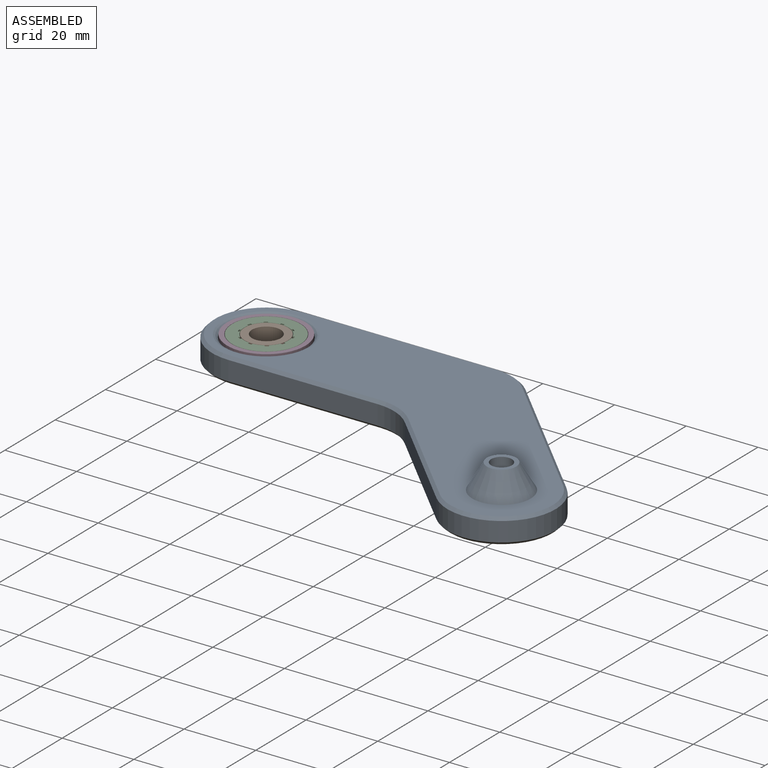
[diagram: assembled view]
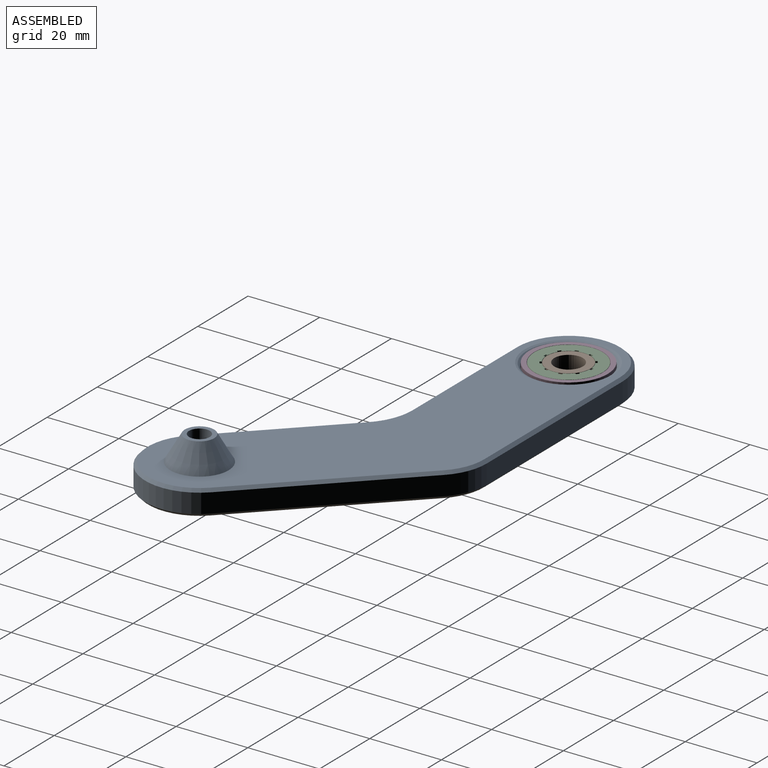
[diagram: assembled view, second angle]
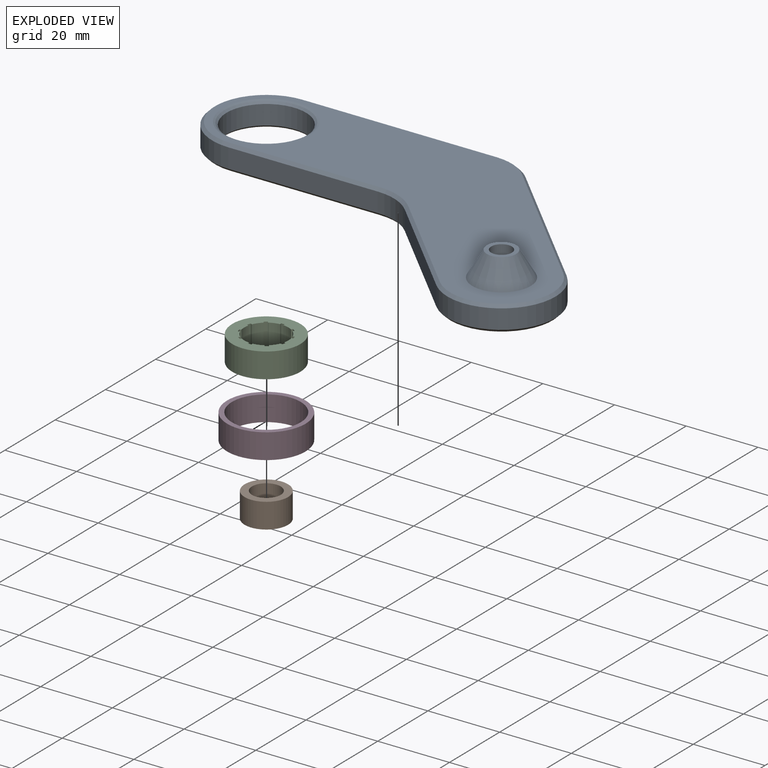
[diagram: exploded view]
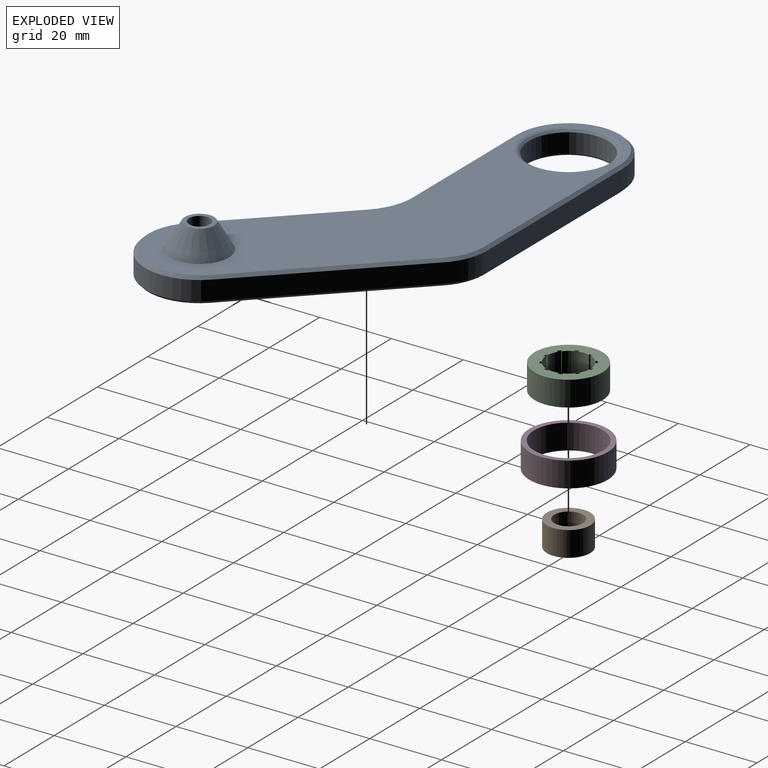
[diagram: exploded view, second angle]
ASSEMBLY  parts=4 mates=3
PART A: 36 faces, bbox 122.6x68.5x14 mm
  f0: cylinder r=2.9mm len=12.6mm, axis (0,0,1), area 223.7mm2, adj f32,f33,f34
  f1: cylinder r=15.1mm len=25.78mm, axis (0,0,-1), area 256.2mm2, adj f2,f7,f16,f25
  f2: plane 38.3x38.3mm, normal (0.71,0.71,0), area 292.5mm2, adj f1,f12,f18,f27
  f3: plane 54.16x5.4mm, normal (0,1,0), area 292.5mm2, adj f4,f12,f21,f30
  f4: cylinder r=15.1mm len=30.2mm, axis (0,0,-1), area 256.2mm2, adj f3,f5,f19,f28
  f5: plane 41.65x5.4mm, normal (0,-1,0), area 224.9mm2, adj f4,f13,f17,f26
  f6: cylinder r=11.1mm len=22.2mm, axis (0,0,-1), area 376.6mm2, adj f10,f11
  f7: plane 29.45x29.45mm, normal (-0.71,-0.71,0), area 224.9mm2, adj f1,f13,f14,f23
  f8: plane 120.99x66.87mm, normal (0,0,1), area 3060.9mm2, adj f23,f24,f25,f26,f27,f28,f29,f30
  f9: plane 120.99x66.87mm, normal (0,0,-1), area 3211mm2, adj f14,f15,f16,f17,f18,f19,f20,f21
  f10: cone r=11.9mm half-angle=45deg, axis (0,0,-1), area 57.2mm2, adj f6,f22
  f11: cone r=11.1mm half-angle=45deg, axis (0,0,1), area 57.2mm2, adj f6,f31
  f12: cylinder r=15mm len=10.61mm, axis (0,0,-1), area 63.6mm2, adj f2,f3,f20,f29
  f13: cylinder r=15mm len=10.61mm, axis (0,0,1), area 63.6mm2, adj f5,f7,f15,f24
  f14: plane 30.02x30.02mm, normal (-0.5,-0.5,-0.71), area 47.1mm2, adj f7,f9,f15,f16
  f15: cone r=15.8mm half-angle=45deg, axis (0,0,-1), area 13.7mm2, adj f9,f13,f14,f17
  f16: cone r=14.3mm half-angle=45deg, axis (0,0,1), area 52.2mm2, adj f1,f9,f14,f18
  f17: plane 41.65x0.8mm, normal (0,-0.71,-0.71), area 47.1mm2, adj f5,f9,f15,f19
  f18: plane 38.86x38.86mm, normal (0.5,0.5,-0.71), area 61.3mm2, adj f2,f9,f16,f20
  f19: cone r=14.3mm half-angle=45deg, axis (0,0,1), area 52.2mm2, adj f4,f9,f17,f21
  f20: cone r=14.2mm half-angle=45deg, axis (0,0,1), area 13mm2, adj f9,f12,f18,f21
  f21: plane 54.16x0.8mm, normal (0,0.71,-0.71), area 61.3mm2, adj f3,f9,f19,f20
  f22: cone r=12.23mm half-angle=67.5deg, axis (0,0,-1), area 46mm2, adj f9,f10
  f23: plane 30.02x30.02mm, normal (-0.5,-0.5,0.71), area 47.1mm2, adj f7,f8,f24,f25
  f24: cone r=15.8mm half-angle=45deg, axis (0,0,1), area 13.7mm2, adj f8,f13,f23,f26
  f25: cone r=15.1mm half-angle=45deg, axis (0,0,-1), area 52.2mm2, adj f1,f8,f23,f27
  f26: plane 41.65x0.8mm, normal (0,-0.71,0.71), area 47.1mm2, adj f5,f8,f24,f28
  f27: plane 38.86x38.86mm, normal (0.5,0.5,0.71), area 61.3mm2, adj f2,f8,f25,f29
  f28: cone r=15.1mm half-angle=45deg, axis (0,0,-1), area 52.2mm2, adj f4,f8,f26,f30
  f29: cone r=14.2mm half-angle=45deg, axis (0,0,-1), area 13mm2, adj f8,f12,f27,f30
  f30: plane 54.16x0.8mm, normal (0,0.71,0.71), area 61.3mm2, adj f3,f8,f28,f29
  f31: cone r=12.23mm half-angle=67.5deg, axis (0,0,1), area 46mm2, adj f8,f11
  f32: plane 8.2x8.2mm, normal (0,0,1), area 26.4mm2, adj f0,f35
  f33: cone r=4.3mm half-angle=45deg, axis (0,0,-1), area 44.8mm2, adj f0,f9
  f34: cylinder r=1.35mm len=4.33mm, axis (-1,0,0), area 28.1mm2, adj f0,f35
  f35: cone r=4.1mm half-angle=30deg, axis (0,0,-1), area 304.2mm2, adj f8,f32,f34
PART B: 4 faces, bbox 12.1x12.1x7 mm
  f0: cylinder r=4mm len=8mm, axis (0,0,-1), area 175.9mm2, adj f2,f3
  f1: cylinder r=6.05mm len=12.1mm, axis (0,0,-1), area 266.1mm2, adj f2,f3
  f2: plane 12.1x12.1mm, normal (0,0,1), area 64.7mm2, adj f0,f1
  f3: plane 12.1x12.1mm, normal (0,0,-1), area 64.7mm2, adj f0,f1
PART C: 43 faces, bbox 19x19x7 mm
  f0: cylinder r=6.15mm len=7mm, axis (0,0,-1), area 20mm2, adj f10,f11,f13,f42
  f1: cylinder r=6.15mm len=7mm, axis (0,0,-1), area 20mm2, adj f10,f11,f39,f40
  f2: cylinder r=6.15mm len=7mm, axis (0,0,-1), area 20mm2, adj f10,f11,f36,f37
  f3: cylinder r=6.15mm len=7mm, axis (0,0,-1), area 20mm2, adj f10,f11,f33,f34
  f4: cylinder r=6.15mm len=7mm, axis (0,0,-1), area 20mm2, adj f10,f11,f30,f31
  f5: cylinder r=6.15mm len=7mm, axis (0,0,-1), area 20mm2, adj f10,f11,f27,f28
  f6: cylinder r=6.15mm len=7mm, axis (0,0,-1), area 20mm2, adj f10,f11,f24,f25
  f7: cylinder r=6.15mm len=7mm, axis (0,0,-1), area 20mm2, adj f10,f11,f21,f22
  f8: cylinder r=6.15mm len=7mm, axis (0,0,-1), area 20mm2, adj f10,f11,f18,f19
  f9: cylinder r=6.15mm len=7mm, axis (0,0,-1), area 20mm2, adj f10,f11,f15,f16
  f10: plane 19x19mm, normal (0,0,1), area 159.7mm2, adj f0,f1,f2,f3,f4,f5,f6,f7
  f11: plane 19x19mm, normal (0,0,-1), area 159.7mm2, adj f0,f1,f2,f3,f4,f5,f6,f7
  f12: cylinder r=9.5mm len=19mm, axis (0,0,-1), area 417.8mm2, adj f10,f11
  f13: plane 7x0.41mm, normal (-0.81,-0.59,0), area 3.5mm2, adj f0,f10,f11,f14
  f14: cylinder r=6.65mm len=7mm, axis (0,0,1), area 7mm2, adj f10,f11,f13,f15
  f15: plane 7x0.41mm, normal (0.81,0.59,0), area 3.5mm2, adj f9,f10,f11,f14
  f16: plane 7x0.48mm, normal (-0.31,-0.95,0), area 3.5mm2, adj f9,f10,f11,f17
  f17: cylinder r=6.65mm len=7mm, axis (0,0,1), area 7mm2, adj f10,f11,f16,f18
  f18: plane 7x0.48mm, normal (0.31,0.95,0), area 3.5mm2, adj f8,f10,f11,f17
  f19: plane 7x0.48mm, normal (0.31,-0.95,0), area 3.5mm2, adj f8,f10,f11,f20
  f20: cylinder r=6.65mm len=7mm, axis (0,0,1), area 7mm2, adj f10,f11,f19,f21
  f21: plane 7x0.48mm, normal (-0.31,0.95,0), area 3.5mm2, adj f7,f10,f11,f20
  f22: plane 7x0.41mm, normal (0.81,-0.59,0), area 3.5mm2, adj f7,f10,f11,f23
  f23: cylinder r=6.65mm len=7mm, axis (0,0,1), area 7mm2, adj f10,f11,f22,f24
  f24: plane 7x0.41mm, normal (-0.81,0.59,0), area 3.5mm2, adj f6,f10,f11,f23
  f25: plane 7x0.5mm, normal (1,0,0), area 3.5mm2, adj f6,f10,f11,f26
  f26: cylinder r=6.65mm len=7mm, axis (0,0,1), area 7mm2, adj f10,f11,f25,f27
  f27: plane 7x0.5mm, normal (-1,0,0), area 3.5mm2, adj f5,f10,f11,f26
  f28: plane 7x0.41mm, normal (0.81,0.59,0), area 3.5mm2, adj f5,f10,f11,f29
  f29: cylinder r=6.65mm len=7mm, axis (0,0,1), area 7mm2, adj f10,f11,f28,f30
  f30: plane 7x0.41mm, normal (-0.81,-0.59,0), area 3.5mm2, adj f4,f10,f11,f29
  f31: plane 7x0.48mm, normal (0.31,0.95,0), area 3.5mm2, adj f4,f10,f11,f32
  f32: cylinder r=6.65mm len=7mm, axis (0,0,1), area 7mm2, adj f10,f11,f31,f33
  f33: plane 7x0.48mm, normal (-0.31,-0.95,0), area 3.5mm2, adj f3,f10,f11,f32
  f34: plane 7x0.48mm, normal (-0.31,0.95,0), area 3.5mm2, adj f3,f10,f11,f35
  f35: cylinder r=6.65mm len=7mm, axis (0,0,1), area 7mm2, adj f10,f11,f34,f36
  f36: plane 7x0.48mm, normal (0.31,-0.95,0), area 3.5mm2, adj f2,f10,f11,f35
  f37: plane 7x0.41mm, normal (-0.81,0.59,0), area 3.5mm2, adj f2,f10,f11,f38
  f38: cylinder r=6.65mm len=7mm, axis (0,0,1), area 7mm2, adj f10,f11,f37,f39
  f39: plane 7x0.41mm, normal (0.81,-0.59,0), area 3.5mm2, adj f1,f10,f11,f38
  f40: plane 7x0.5mm, normal (-1,0,0), area 3.5mm2, adj f1,f10,f11,f41
  f41: cylinder r=6.65mm len=7mm, axis (0,0,1), area 7mm2, adj f10,f11,f40,f42
  f42: plane 7x0.5mm, normal (1,0,0), area 3.5mm2, adj f0,f10,f11,f41
PART D: 4 faces, bbox 21.9x21.9x7 mm
  f0: cylinder r=9.6mm len=19.2mm, axis (0,0,-1), area 422.2mm2, adj f2,f3
  f1: cylinder r=10.95mm len=21.9mm, axis (0,0,-1), area 481.6mm2, adj f2,f3
  f2: plane 21.9x21.9mm, normal (0,0,1), area 87.2mm2, adj f0,f1
  f3: plane 21.9x21.9mm, normal (0,0,-1), area 87.2mm2, adj f0,f1
PLACE A t=(-27.31,20.33,-18.05)mm
PLACE B t=(-27.31,20.33,-21.55)mm
PLACE C t=(-27.31,20.33,-21.55)mm
PLACE D t=(-27.31,20.33,-21.55)mm
MATE revolute C.f0 <-> B.f0  axis (0,0,1) through (-27.31,20.33,-14.55)mm
MATE fastened D.f0 <-> A.f4  axis (0,0,1) through (-27.31,20.33,-14.55)mm
MATE fastened C.f0 <-> D.f0  axis (0,0,1) through (-27.31,20.33,-14.55)mm
